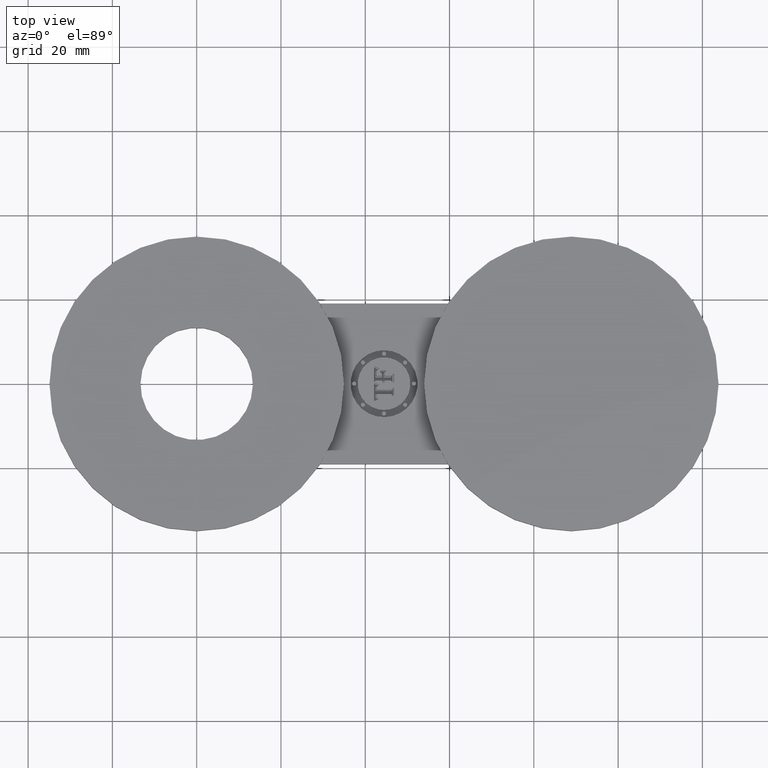
[diagram: clean part render]
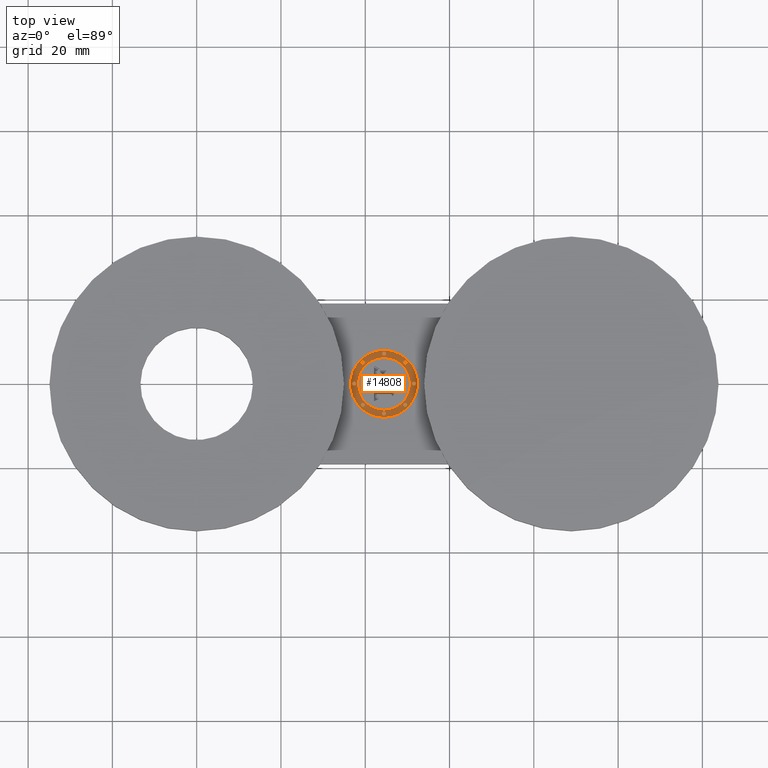
[diagram: same view with one face highlighted and labeled with its STEP entity id]
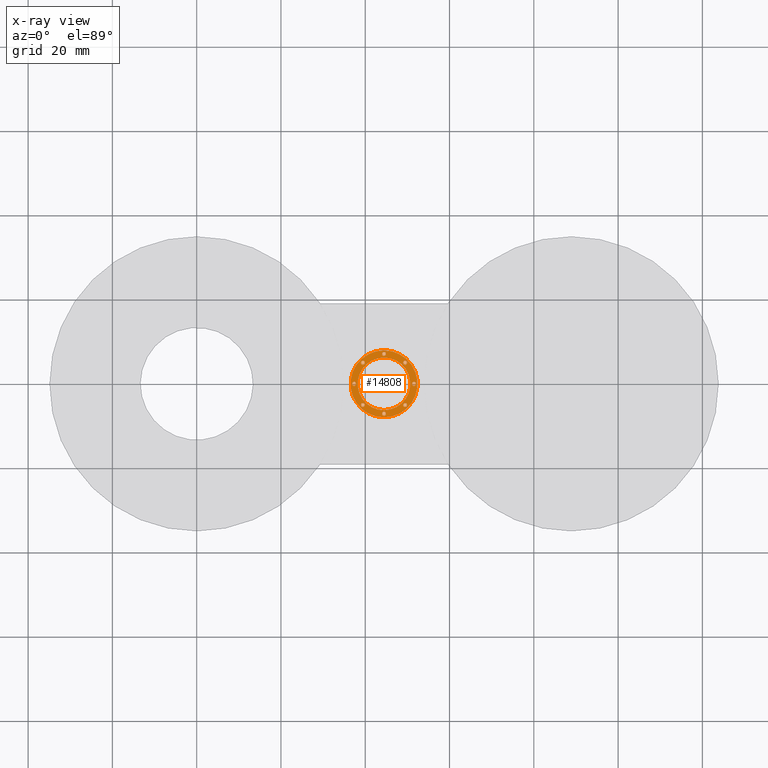
[diagram: x-ray of the same camera — body ghosted, the highlighted face saturated]
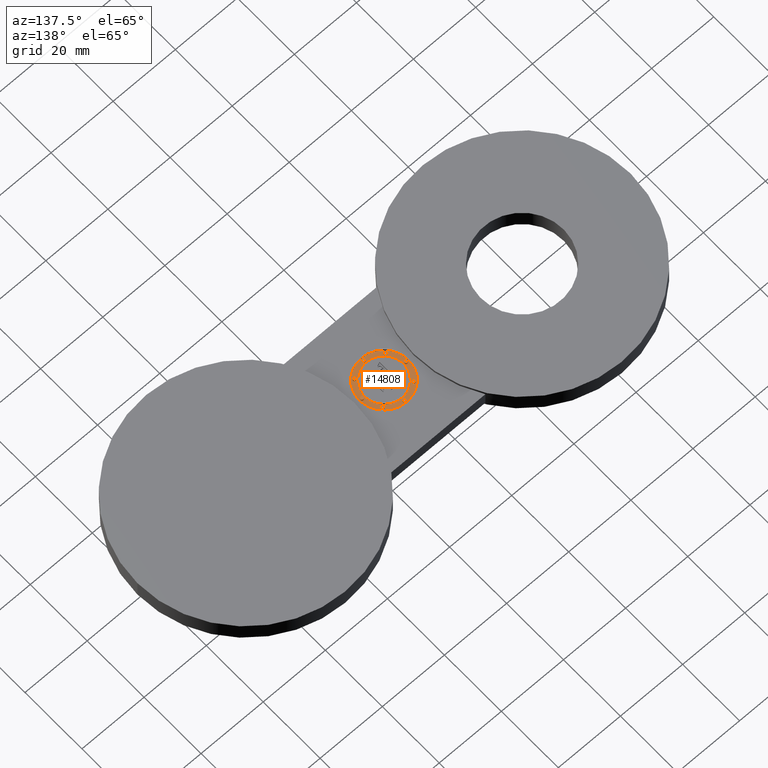
[diagram: same view with one face highlighted and labeled with its STEP entity id]
A machine part, top view. The second image highlights one B-rep face of the part: STEP entity #14808.
The next image is the same camera in x-ray: the body ghosted, the highlighted face saturated — about 0% of this face is hidden behind the body in this view.
A second angle (auxiliary view) of the same face is appended — the face is thin or edge-on in the first view.
In plain terms, the highlighted planar face has unit normal (0, 0, 1).
Its self-contained STEP definition (entity closure, byte-faithful):
#3455=AXIS2_PLACEMENT_3D('Plane Axis2P3D',#3452,#3453,#3454) ;
#14606=AXIS2_PLACEMENT_3D('Circle Axis2P3D',#14604,#14605,$) ;
#14625=AXIS2_PLACEMENT_3D('Circle Axis2P3D',#14623,#14624,$) ;
#14648=AXIS2_PLACEMENT_3D('Circle Axis2P3D',#14646,#14647,$) ;
#14657=AXIS2_PLACEMENT_3D('Circle Axis2P3D',#14655,#14656,$) ;
#14666=AXIS2_PLACEMENT_3D('Circle Axis2P3D',#14664,#14665,$) ;
#14675=AXIS2_PLACEMENT_3D('Circle Axis2P3D',#14673,#14674,$) ;
#14684=AXIS2_PLACEMENT_3D('Circle Axis2P3D',#14682,#14683,$) ;
#14693=AXIS2_PLACEMENT_3D('Circle Axis2P3D',#14691,#14692,$) ;
#14702=AXIS2_PLACEMENT_3D('Circle Axis2P3D',#14700,#14701,$) ;
#14711=AXIS2_PLACEMENT_3D('Circle Axis2P3D',#14709,#14710,$) ;
#14720=AXIS2_PLACEMENT_3D('Circle Axis2P3D',#14718,#14719,$) ;
#14729=AXIS2_PLACEMENT_3D('Circle Axis2P3D',#14727,#14728,$) ;
#14738=AXIS2_PLACEMENT_3D('Circle Axis2P3D',#14736,#14737,$) ;
#14747=AXIS2_PLACEMENT_3D('Circle Axis2P3D',#14745,#14746,$) ;
#14756=AXIS2_PLACEMENT_3D('Circle Axis2P3D',#14754,#14755,$) ;
#14765=AXIS2_PLACEMENT_3D('Circle Axis2P3D',#14763,#14764,$) ;
#14774=AXIS2_PLACEMENT_3D('Circle Axis2P3D',#14772,#14773,$) ;
#14783=AXIS2_PLACEMENT_3D('Circle Axis2P3D',#14781,#14782,$) ;
#14792=AXIS2_PLACEMENT_3D('Circle Axis2P3D',#14790,#14791,$) ;
#14801=AXIS2_PLACEMENT_3D('Circle Axis2P3D',#14799,#14800,$) ;
#3452=CARTESIAN_POINT('Axis2P3D Location',(0.,0.,0.0787500000003)) ;
#14594=CARTESIAN_POINT('Vertex',(1.75000000001,0.312499996876,0.0787500000003)) ;
#14601=CARTESIAN_POINT('Vertex',(1.75000000001,-0.312499996876,0.0787500000003)) ;
#14604=CARTESIAN_POINT('Axis2P3D Location',(1.75000000001,-1.62724055353E-015,0.0787500000003)) ;
#14623=CARTESIAN_POINT('Axis2P3D Location',(1.75000000001,-1.62724055353E-015,0.0787500000003)) ;
#14646=CARTESIAN_POINT('Axis2P3D Location',(1.75000000001,-1.62724055353E-015,0.0787500000003)) ;
#14650=CARTESIAN_POINT('Vertex',(1.75000000001,-0.246212118751,0.0787500000003)) ;
#14652=CARTESIAN_POINT('Vertex',(1.75000000001,0.246212118751,0.0787500000003)) ;
#14655=CARTESIAN_POINT('Axis2P3D Location',(1.75000000001,-1.62724055353E-015,0.0787500000003)) ;
#14664=CARTESIAN_POINT('Axis2P3D Location',(1.75000000001,-0.279356057814,0.0787500000003)) ;
#14668=CARTESIAN_POINT('Vertex',(1.75000000001,-0.260416664064,0.0787500000003)) ;
#14670=CARTESIAN_POINT('Vertex',(1.75000000001,-0.298295451564,0.0787500000003)) ;
#14673=CARTESIAN_POINT('Axis2P3D Location',(1.75000000001,-0.279356057814,0.0787500000003)) ;
#14682=CARTESIAN_POINT('Axis2P3D Location',(1.94753456285,-0.197534562846,0.0787500000003)) ;
#14686=CARTESIAN_POINT('Vertex',(1.94753456285,-0.178595169096,0.0787500000003)) ;
#14688=CARTESIAN_POINT('Vertex',(1.94753456285,-0.216473956596,0.0787500000003)) ;
#14691=CARTESIAN_POINT('Axis2P3D Location',(1.94753456285,-0.197534562846,0.0787500000003)) ;
#14700=CARTESIAN_POINT('Axis2P3D Location',(1.55246543716,-0.197534562846,0.0787500000003)) ;
#14704=CARTESIAN_POINT('Vertex',(1.55246543716,-0.178595169096,0.0787500000003)) ;
#14706=CARTESIAN_POINT('Vertex',(1.55246543716,-0.216473956596,0.0787500000003)) ;
#14709=CARTESIAN_POINT('Axis2P3D Location',(1.55246543716,-0.197534562846,0.0787500000003)) ;
#14718=CARTESIAN_POINT('Axis2P3D Location',(1.94753456285,0.197534562846,0.0787500000003)) ;
#14722=CARTESIAN_POINT('Vertex',(1.94753456285,0.178595169095,0.0787500000003)) ;
#14724=CARTESIAN_POINT('Vertex',(1.94753456285,0.216473956596,0.0787500000003)) ;
#14727=CARTESIAN_POINT('Axis2P3D Location',(1.94753456285,0.197534562846,0.0787500000003)) ;
#14736=CARTESIAN_POINT('Axis2P3D Location',(2.02935605782,4.5270666066E-015,0.0787500000003)) ;
#14740=CARTESIAN_POINT('Vertex',(2.02935605782,-0.0189393937501,0.0787500000003)) ;
#14742=CARTESIAN_POINT('Vertex',(2.02935605782,0.0189393937501,0.0787500000003)) ;
#14745=CARTESIAN_POINT('Axis2P3D Location',(2.02935605782,4.5270666066E-015,0.0787500000003)) ;
#14754=CARTESIAN_POINT('Axis2P3D Location',(1.55246543716,0.197534562846,0.0787500000003)) ;
#14758=CARTESIAN_POINT('Vertex',(1.55246543716,0.178595169095,0.0787500000003)) ;
#14760=CARTESIAN_POINT('Vertex',(1.55246543716,0.216473956596,0.0787500000003)) ;
#14763=CARTESIAN_POINT('Axis2P3D Location',(1.55246543716,0.197534562846,0.0787500000003)) ;
#14772=CARTESIAN_POINT('Axis2P3D Location',(1.75000000001,0.279356057814,0.0787500000003)) ;
#14776=CARTESIAN_POINT('Vertex',(1.75000000001,0.260416664064,0.0787500000003)) ;
#14778=CARTESIAN_POINT('Vertex',(1.75000000001,0.298295451564,0.0787500000003)) ;
#14781=CARTESIAN_POINT('Axis2P3D Location',(1.75000000001,0.279356057814,0.0787500000003)) ;
#14790=CARTESIAN_POINT('Axis2P3D Location',(1.47064394219,-4.21484697312E-015,0.0787500000003)) ;
#14794=CARTESIAN_POINT('Vertex',(1.47064394219,-0.0189393937501,0.0787500000003)) ;
#14796=CARTESIAN_POINT('Vertex',(1.47064394219,0.0189393937501,0.0787500000003)) ;
#14799=CARTESIAN_POINT('Axis2P3D Location',(1.47064394219,-4.21484697312E-015,0.0787500000003)) ;
#3453=DIRECTION('Axis2P3D Direction',(0.,0.,0.0393700787402)) ;
#3454=DIRECTION('Axis2P3D XDirection',(0.0393700787402,0.,0.)) ;
#14605=DIRECTION('Axis2P3D Direction',(0.,0.,0.0393700787402)) ;
#14624=DIRECTION('Axis2P3D Direction',(0.,0.,0.0393700787402)) ;
#14647=DIRECTION('Axis2P3D Direction',(0.,0.,0.0393700787402)) ;
#14656=DIRECTION('Axis2P3D Direction',(0.,0.,0.0393700787402)) ;
#14665=DIRECTION('Axis2P3D Direction',(0.,0.,0.0393700787402)) ;
#14674=DIRECTION('Axis2P3D Direction',(0.,0.,0.0393700787402)) ;
#14683=DIRECTION('Axis2P3D Direction',(0.,0.,0.0393700787402)) ;
#14692=DIRECTION('Axis2P3D Direction',(0.,0.,0.0393700787402)) ;
#14701=DIRECTION('Axis2P3D Direction',(0.,0.,0.0393700787402)) ;
#14710=DIRECTION('Axis2P3D Direction',(0.,0.,0.0393700787402)) ;
#14719=DIRECTION('Axis2P3D Direction',(0.,0.,0.0393700787402)) ;
#14728=DIRECTION('Axis2P3D Direction',(0.,0.,0.0393700787402)) ;
#14737=DIRECTION('Axis2P3D Direction',(0.,0.,0.0393700787402)) ;
#14746=DIRECTION('Axis2P3D Direction',(0.,0.,0.0393700787402)) ;
#14755=DIRECTION('Axis2P3D Direction',(0.,0.,0.0393700787402)) ;
#14764=DIRECTION('Axis2P3D Direction',(0.,0.,0.0393700787402)) ;
#14773=DIRECTION('Axis2P3D Direction',(0.,0.,0.0393700787402)) ;
#14782=DIRECTION('Axis2P3D Direction',(0.,0.,0.0393700787402)) ;
#14791=DIRECTION('Axis2P3D Direction',(0.,0.,0.0393700787402)) ;
#14800=DIRECTION('Axis2P3D Direction',(0.,0.,0.0393700787402)) ;
#14643=ORIENTED_EDGE('',*,*,#14608,.T.) ;
#14644=ORIENTED_EDGE('',*,*,#14627,.T.) ;
#14661=ORIENTED_EDGE('',*,*,#14654,.F.) ;
#14662=ORIENTED_EDGE('',*,*,#14659,.F.) ;
#14679=ORIENTED_EDGE('',*,*,#14672,.F.) ;
#14680=ORIENTED_EDGE('',*,*,#14677,.F.) ;
#14697=ORIENTED_EDGE('',*,*,#14690,.F.) ;
#14698=ORIENTED_EDGE('',*,*,#14695,.F.) ;
#14715=ORIENTED_EDGE('',*,*,#14708,.F.) ;
#14716=ORIENTED_EDGE('',*,*,#14713,.F.) ;
#14733=ORIENTED_EDGE('',*,*,#14726,.F.) ;
#14734=ORIENTED_EDGE('',*,*,#14731,.F.) ;
#14751=ORIENTED_EDGE('',*,*,#14744,.F.) ;
#14752=ORIENTED_EDGE('',*,*,#14749,.F.) ;
#14769=ORIENTED_EDGE('',*,*,#14762,.F.) ;
#14770=ORIENTED_EDGE('',*,*,#14767,.F.) ;
#14787=ORIENTED_EDGE('',*,*,#14780,.F.) ;
#14788=ORIENTED_EDGE('',*,*,#14785,.F.) ;
#14805=ORIENTED_EDGE('',*,*,#14798,.F.) ;
#14806=ORIENTED_EDGE('',*,*,#14803,.F.) ;
#14663=FACE_BOUND('',#14660,.T.) ;
#14681=FACE_BOUND('',#14678,.T.) ;
#14699=FACE_BOUND('',#14696,.T.) ;
#14717=FACE_BOUND('',#14714,.T.) ;
#14735=FACE_BOUND('',#14732,.T.) ;
#14753=FACE_BOUND('',#14750,.T.) ;
#14771=FACE_BOUND('',#14768,.T.) ;
#14789=FACE_BOUND('',#14786,.T.) ;
#14807=FACE_BOUND('',#14804,.T.) ;
#14808=ADVANCED_FACE('PartBody',(#14645,#14663,#14681,#14699,#14717,#14735,#14753,#14771,#14789,#14807),#3456,.T.) ;
#14607=CIRCLE('generated circle',#14606,0.312499996876) ;
#14626=CIRCLE('generated circle',#14625,0.312499996876) ;
#14649=CIRCLE('generated circle',#14648,0.246212118751) ;
#14658=CIRCLE('generated circle',#14657,0.246212118751) ;
#14667=CIRCLE('generated circle',#14666,0.0189393937501) ;
#14676=CIRCLE('generated circle',#14675,0.0189393937501) ;
#14685=CIRCLE('generated circle',#14684,0.0189393937501) ;
#14694=CIRCLE('generated circle',#14693,0.0189393937501) ;
#14703=CIRCLE('generated circle',#14702,0.0189393937501) ;
#14712=CIRCLE('generated circle',#14711,0.0189393937501) ;
#14721=CIRCLE('generated circle',#14720,0.0189393937501) ;
#14730=CIRCLE('generated circle',#14729,0.0189393937501) ;
#14739=CIRCLE('generated circle',#14738,0.0189393937501) ;
#14748=CIRCLE('generated circle',#14747,0.0189393937501) ;
#14757=CIRCLE('generated circle',#14756,0.0189393937501) ;
#14766=CIRCLE('generated circle',#14765,0.0189393937501) ;
#14775=CIRCLE('generated circle',#14774,0.0189393937501) ;
#14784=CIRCLE('generated circle',#14783,0.0189393937501) ;
#14793=CIRCLE('generated circle',#14792,0.0189393937501) ;
#14802=CIRCLE('generated circle',#14801,0.0189393937501) ;
#14608=EDGE_CURVE('',#14595,#14602,#14607,.T.) ;
#14627=EDGE_CURVE('',#14602,#14595,#14626,.T.) ;
#14654=EDGE_CURVE('',#14651,#14653,#14649,.T.) ;
#14659=EDGE_CURVE('',#14653,#14651,#14658,.T.) ;
#14672=EDGE_CURVE('',#14669,#14671,#14667,.T.) ;
#14677=EDGE_CURVE('',#14671,#14669,#14676,.T.) ;
#14690=EDGE_CURVE('',#14687,#14689,#14685,.T.) ;
#14695=EDGE_CURVE('',#14689,#14687,#14694,.T.) ;
#14708=EDGE_CURVE('',#14705,#14707,#14703,.T.) ;
#14713=EDGE_CURVE('',#14707,#14705,#14712,.T.) ;
#14726=EDGE_CURVE('',#14723,#14725,#14721,.T.) ;
#14731=EDGE_CURVE('',#14725,#14723,#14730,.T.) ;
#14744=EDGE_CURVE('',#14741,#14743,#14739,.T.) ;
#14749=EDGE_CURVE('',#14743,#14741,#14748,.T.) ;
#14762=EDGE_CURVE('',#14759,#14761,#14757,.T.) ;
#14767=EDGE_CURVE('',#14761,#14759,#14766,.T.) ;
#14780=EDGE_CURVE('',#14777,#14779,#14775,.T.) ;
#14785=EDGE_CURVE('',#14779,#14777,#14784,.T.) ;
#14798=EDGE_CURVE('',#14795,#14797,#14793,.T.) ;
#14803=EDGE_CURVE('',#14797,#14795,#14802,.T.) ;
#14642=EDGE_LOOP('',(#14643,#14644)) ;
#14660=EDGE_LOOP('',(#14661,#14662)) ;
#14678=EDGE_LOOP('',(#14679,#14680)) ;
#14696=EDGE_LOOP('',(#14697,#14698)) ;
#14714=EDGE_LOOP('',(#14715,#14716)) ;
#14732=EDGE_LOOP('',(#14733,#14734)) ;
#14750=EDGE_LOOP('',(#14751,#14752)) ;
#14768=EDGE_LOOP('',(#14769,#14770)) ;
#14786=EDGE_LOOP('',(#14787,#14788)) ;
#14804=EDGE_LOOP('',(#14805,#14806)) ;
#14645=FACE_OUTER_BOUND('',#14642,.T.) ;
#3456=PLANE('',#3455) ;
#14595=VERTEX_POINT('',#14594) ;
#14602=VERTEX_POINT('',#14601) ;
#14651=VERTEX_POINT('',#14650) ;
#14653=VERTEX_POINT('',#14652) ;
#14669=VERTEX_POINT('',#14668) ;
#14671=VERTEX_POINT('',#14670) ;
#14687=VERTEX_POINT('',#14686) ;
#14689=VERTEX_POINT('',#14688) ;
#14705=VERTEX_POINT('',#14704) ;
#14707=VERTEX_POINT('',#14706) ;
#14723=VERTEX_POINT('',#14722) ;
#14725=VERTEX_POINT('',#14724) ;
#14741=VERTEX_POINT('',#14740) ;
#14743=VERTEX_POINT('',#14742) ;
#14759=VERTEX_POINT('',#14758) ;
#14761=VERTEX_POINT('',#14760) ;
#14777=VERTEX_POINT('',#14776) ;
#14779=VERTEX_POINT('',#14778) ;
#14795=VERTEX_POINT('',#14794) ;
#14797=VERTEX_POINT('',#14796) ;